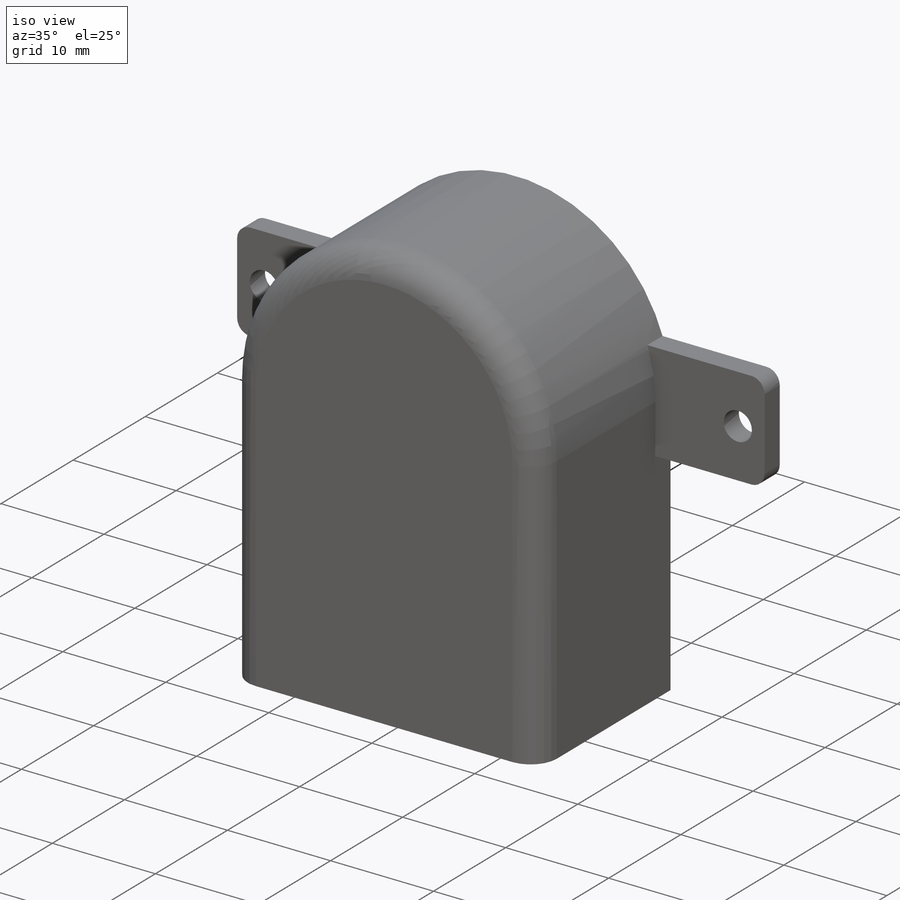
[diagram: iso view]
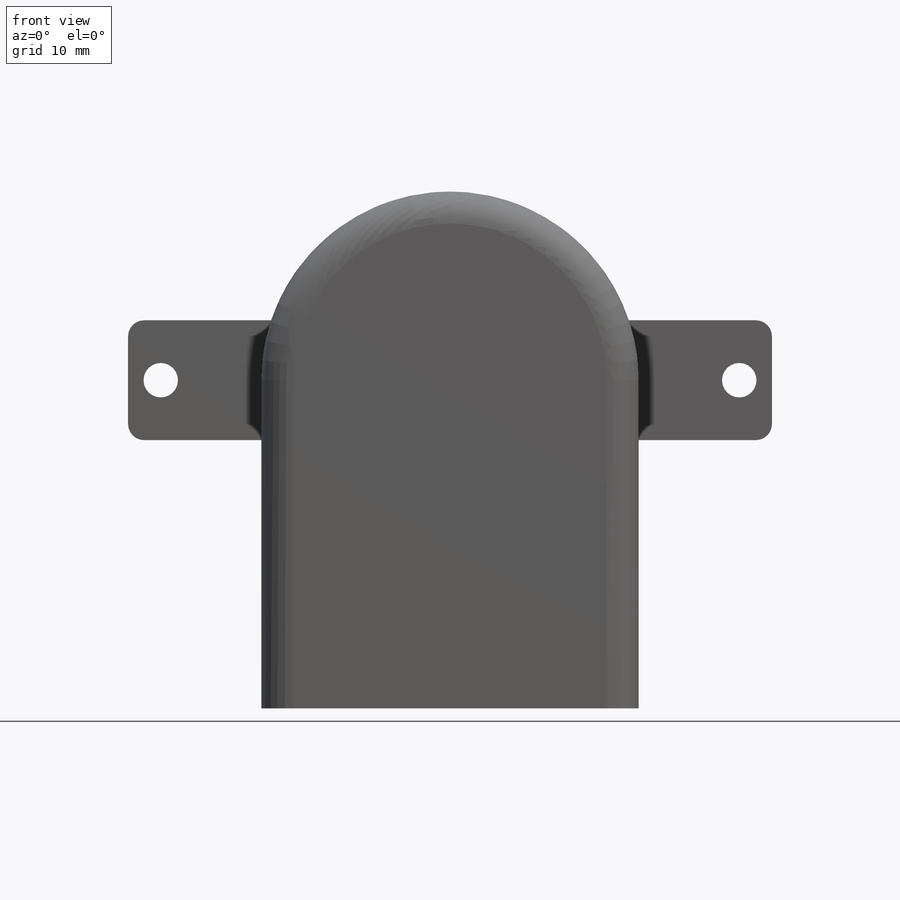
[diagram: front view]
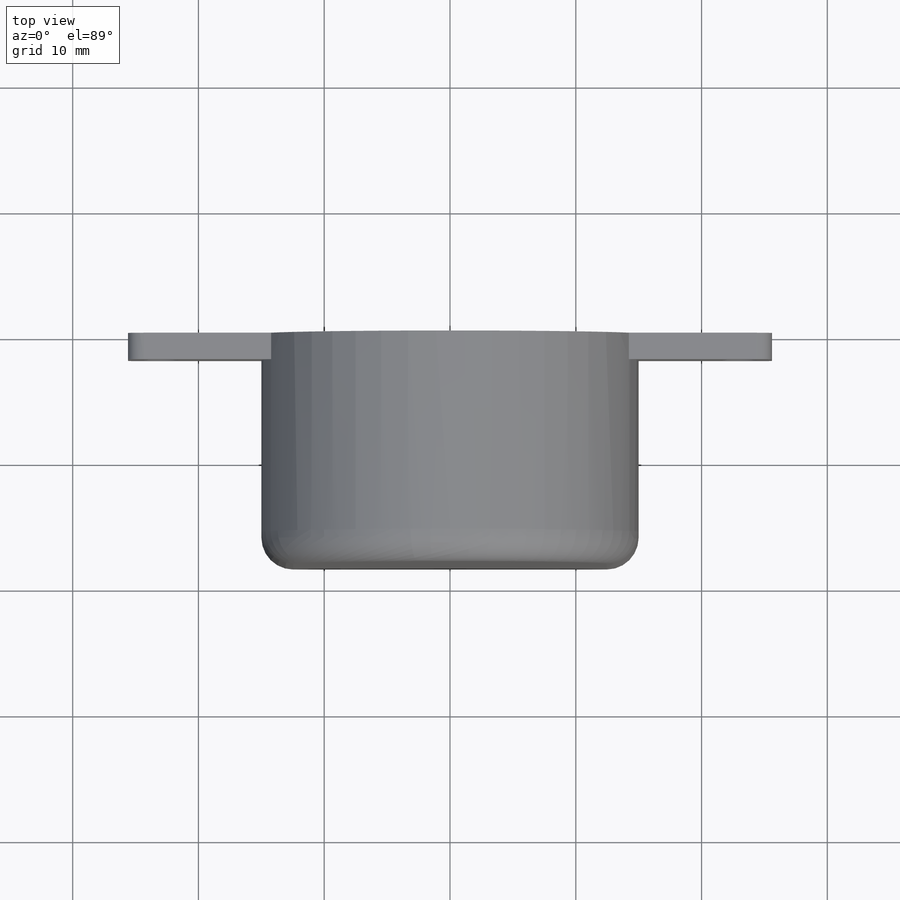
[diagram: top view]
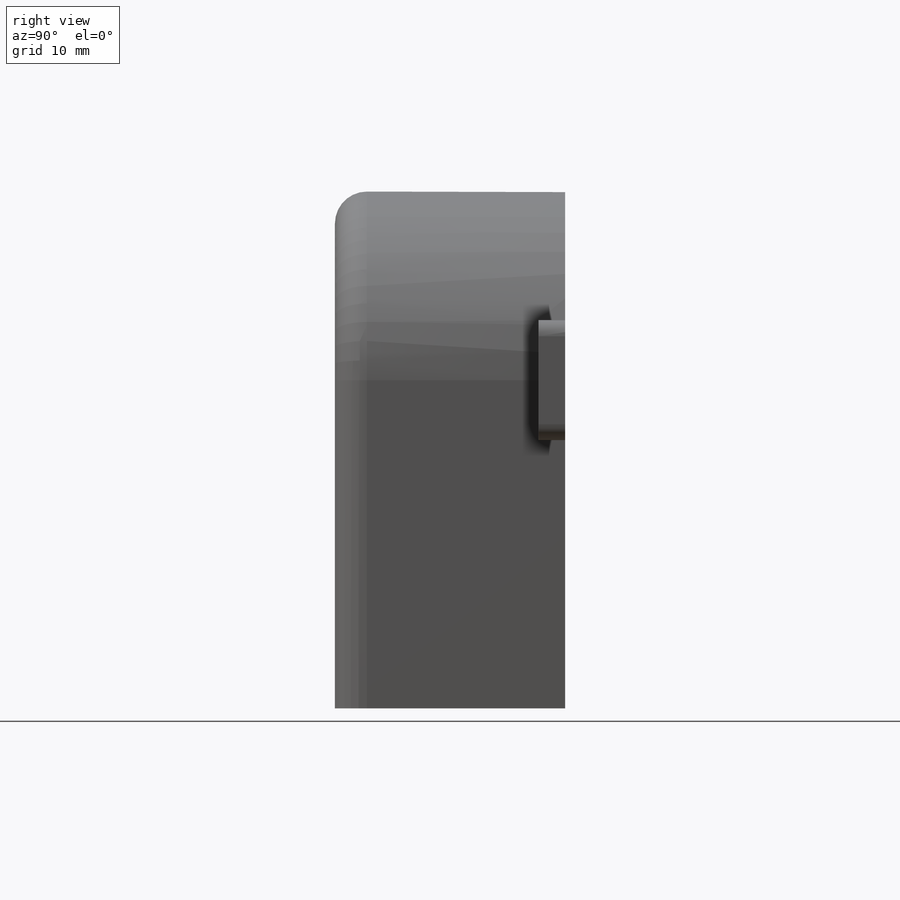
[diagram: right view]
SOLIDWORKS PART (.sldprt)
format: sldprt  version: not decoded by parser v0  size: 264,192 bytes
history: native  units: mm
features: sketch x4, extrude x2, fillet x2, cut_extrude x2, material x1 (+13 scaffold rows collapsed)
feature tree (24):
  scaffold x13  (default folders/planes/origin — collapsed)
  material  "Material <not specified>"
  sketch  "Sketch1"  dims[D2=15.0mm D1=26.1mm]
  extrude  "Boss-Extrude1"  Depth=18.3mm
  fillet  "Fillet1"  Radius=2.54mm
  sketch  "Sketch2"  dims[D5=2.74mm D1=51.2mm D2=9.53mm D3=4.765mm D4=46.0mm D6=23.0mm D7=4.765mm]
  extrude  "Boss-Extrude2"  Depth=2.1mm
  fillet  "Fillet2"  Radius=1.27mm
  sketch  "Sketch3"  dims[D1=8.0mm]
  cut_extrude  "Cut-Extrude1"  Depth=14mm
  sketch  "Sketch4"  dims[c1.D1=0.32mm c1.D2=0.64mm c1.D3=~1.518691mm c2.D3=90.0deg c3.D3=~1.518691mm c4.D3=90.0deg c5.D3=2.54mm c5.D4=2.54mm c5.D5=2.54mm c5.D6=2.54mm c5.D7=14.5mm c5.D8=7.1mm c5.D9=2.1mm c5.D10=7.25mm c5.D11=3.0mm c6.D9=5.0mm c6.D12=2.1mm c7.D9=2.13mm c7.D11=3.0mm c7.D8=7.1mm]
  cut_extrude  "Cut-Extrude2"  Depth=6.35mm
decode coverage: 10 of 10 modeling features carry decoded parameters
note: ~ marks probable driven/reference dimensions
note: suppression state not decoded; provenance and decode notes live in map.json
